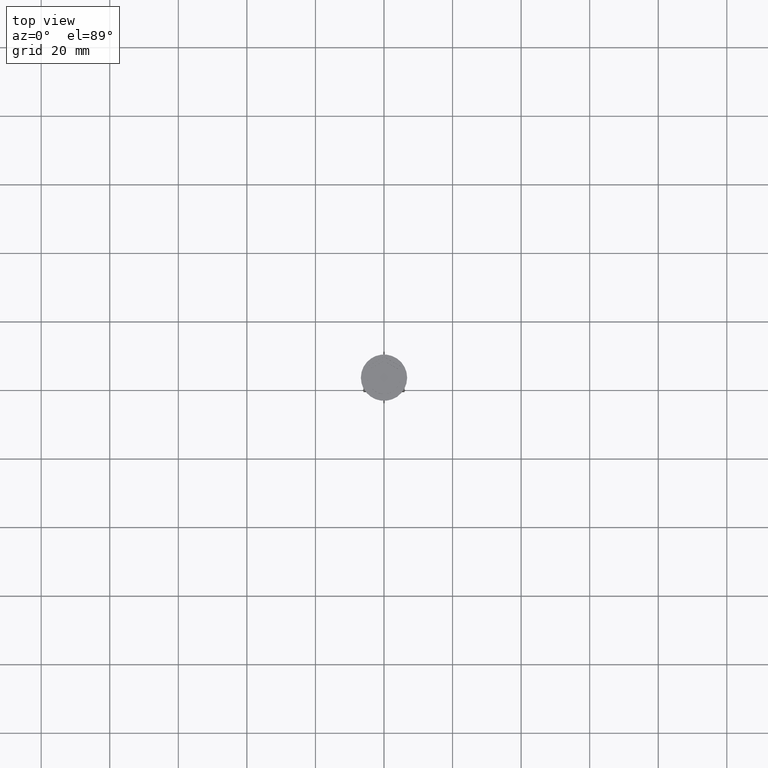
[diagram: clean part render]
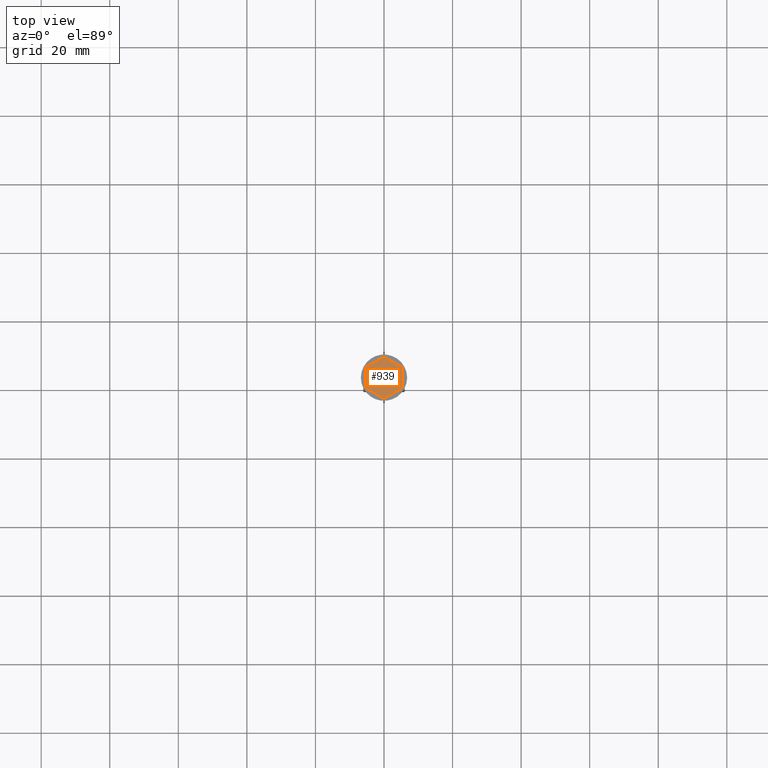
[diagram: same view with one face highlighted and labeled with its STEP entity id]
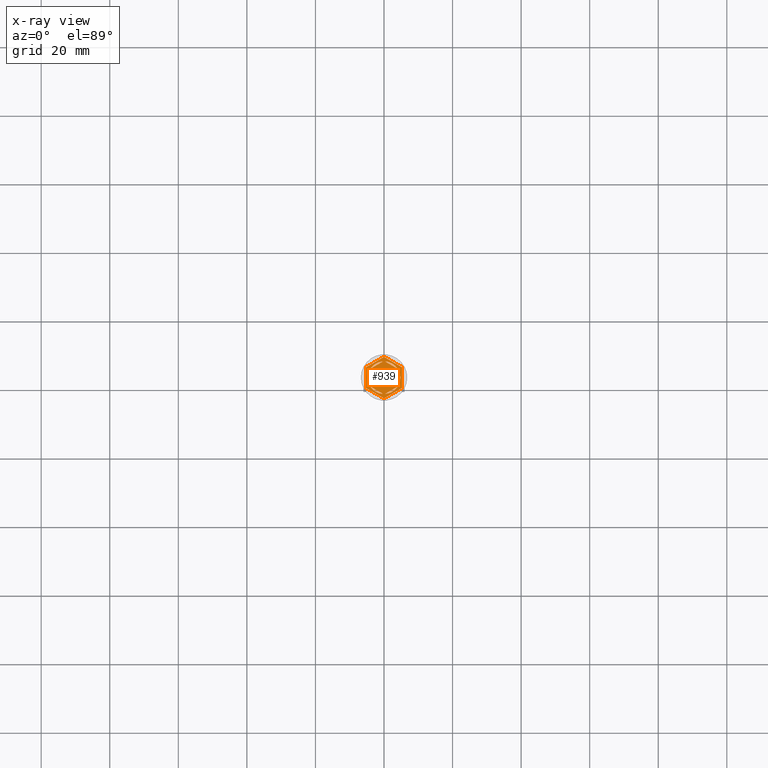
[diagram: x-ray of the same camera — body ghosted, the highlighted face saturated]
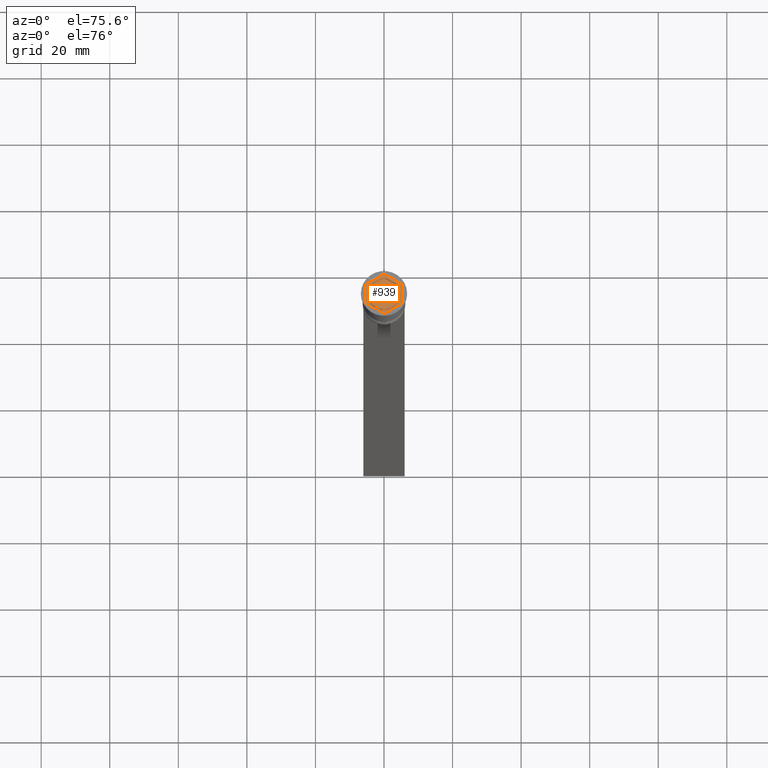
[diagram: same view with one face highlighted and labeled with its STEP entity id]
A machine part, top view. The second image highlights one B-rep face of the part: STEP entity #939.
The next image is the same camera in x-ray: the body ghosted, the highlighted face saturated — about 0% of this face is hidden behind the body in this view.
A second angle (auxiliary view) of the same face is appended — the face is thin or edge-on in the first view.
In plain terms, the highlighted planar face has unit normal (0, 0, 1).
Its self-contained STEP definition (entity closure, byte-faithful):
#8 = DIRECTION ( 'NONE',  ( -0.8660254037844385966, 0.4999999999999998890, 0.000000000000000000 ) ) ;
#11 = EDGE_CURVE ( 'NONE', #247, #1378, #1309, .T. ) ;
#20 = DIRECTION ( 'NONE',  ( -0.8660254037844385966, -0.5000000000000000000, 0.000000000000000000 ) ) ;
#50 = LINE ( 'NONE', #1499, #340 ) ;
#61 = ORIENTED_EDGE ( 'NONE', *, *, #1076, .F. ) ;
#62 = DIRECTION ( 'NONE',  ( 1.000000000000000000, 0.000000000000000000, 0.000000000000000000 ) ) ;
#65 = AXIS2_PLACEMENT_3D ( 'NONE', #1654, #1327, #62 ) ;
#70 = ORIENTED_EDGE ( 'NONE', *, *, #2182, .F. ) ;
#93 = DIRECTION ( 'NONE',  ( 0.8660254037844387076, -0.4999999999999998335, 0.000000000000000000 ) ) ;
#97 = LINE ( 'NONE', #794, #1803 ) ;
#106 = EDGE_LOOP ( 'NONE', ( #893, #70 ) ) ;
#144 = EDGE_CURVE ( 'NONE', #1817, #1516, #2342, .T. ) ;
#146 = CARTESIAN_POINT ( 'NONE',  ( -5.250000000000000888, -3.031088913245536087, -1.000000000000000000 ) ) ;
#150 = AXIS2_PLACEMENT_3D ( 'NONE', #851, #531, #161 ) ;
#153 = DIRECTION ( 'NONE',  ( 1.000000000000000000, 0.000000000000000000, 0.000000000000000000 ) ) ;
#161 = DIRECTION ( 'NONE',  ( 1.000000000000000000, 0.000000000000000000, 0.000000000000000000 ) ) ;
#173 = FACE_BOUND ( 'NONE', #1794, .T. ) ;
#176 = CARTESIAN_POINT ( 'NONE',  ( -4.250000000000000000, 2.121320343559643717, -1.000000000000000888 ) ) ;
#185 = EDGE_CURVE ( 'NONE', #2011, #563, #1121, .T. ) ;
#196 = VERTEX_POINT ( 'NONE', #244 ) ;
#244 = CARTESIAN_POINT ( 'NONE',  ( 5.250000000000000888, 3.031088913245536087, -1.000000000000000000 ) ) ;
#247 = VERTEX_POINT ( 'NONE', #394 ) ;
#257 = CIRCLE ( 'NONE', #747, 4.750000000000000888 ) ;
#302 = CIRCLE ( 'NONE', #65, 4.750000000000000888 ) ;
#321 = CARTESIAN_POINT ( 'NONE',  ( 4.249999999999999112, 2.121320343559644162, -1.000000000000000888 ) ) ;
#326 = VERTEX_POINT ( 'NONE', #1038 ) ;
#337 = CARTESIAN_POINT ( 'NONE',  ( -8.673617379884035472E-16, -4.907477288111819824, -1.000000000000000888 ) ) ;
#340 = VECTOR ( 'NONE', #1138, 1000.000000000000114 ) ;
#347 = FACE_BOUND ( 'NONE', #2136, .T. ) ;
#357 = DIRECTION ( 'NONE',  ( 0.000000000000000000, 0.000000000000000000, 1.000000000000000000 ) ) ;
#358 = ORIENTED_EDGE ( 'NONE', *, *, #1484, .T. ) ;
#363 = FACE_BOUND ( 'NONE', #387, .T. ) ;
#387 = EDGE_LOOP ( 'NONE', ( #1337, #1710 ) ) ;
#391 = CARTESIAN_POINT ( 'NONE',  ( 0.000000000000000000, 0.000000000000000000, -1.000000000000000000 ) ) ;
#394 = CARTESIAN_POINT ( 'NONE',  ( -3.962117307087385409, -2.619947794304041899, -1.000000000000000888 ) ) ;
#406 = AXIS2_PLACEMENT_3D ( 'NONE', #1417, #1065, #1619 ) ;
#429 = DIRECTION ( 'NONE',  ( 0.000000000000000000, 0.000000000000000000, 1.000000000000000000 ) ) ;
#442 = DIRECTION ( 'NONE',  ( 1.000000000000000000, 0.000000000000000000, 0.000000000000000000 ) ) ;
#514 = EDGE_CURVE ( 'NONE', #563, #823, #1199, .T. ) ;
#531 = DIRECTION ( 'NONE',  ( 0.000000000000000000, 0.000000000000000000, 1.000000000000000000 ) ) ;
#538 = EDGE_CURVE ( 'NONE', #1025, #1063, #1601, .T. ) ;
#542 = ORIENTED_EDGE ( 'NONE', *, *, #1625, .T. ) ;
#549 = DIRECTION ( 'NONE',  ( 1.000000000000000000, 0.000000000000000000, 0.000000000000000000 ) ) ;
#550 = VERTEX_POINT ( 'NONE', #1068 ) ;
#551 = ORIENTED_EDGE ( 'NONE', *, *, #1855, .F. ) ;
#563 = VERTEX_POINT ( 'NONE', #176 ) ;
#571 = CARTESIAN_POINT ( 'NONE',  ( -4.250000000000000000, 2.453738644055909468, -1.000000000000000888 ) ) ;
#583 = CARTESIAN_POINT ( 'NONE',  ( 3.962117307087384521, 2.619947794304043232, -1.000000000000000888 ) ) ;
#584 = CARTESIAN_POINT ( 'NONE',  ( 0.2878826929126150347, -4.741268137863686505, -1.000000000000000888 ) ) ;
#589 = AXIS2_PLACEMENT_3D ( 'NONE', #906, #357, #708 ) ;
#593 = AXIS2_PLACEMENT_3D ( 'NONE', #1096, #1627, #549 ) ;
#603 = VECTOR ( 'NONE', #736, 1000.000000000000000 ) ;
#630 = VERTEX_POINT ( 'NONE', #1119 ) ;
#645 = EDGE_LOOP ( 'NONE', ( #2318, #1724, #1367, #358, #1510, #542 ) ) ;
#646 = CARTESIAN_POINT ( 'NONE',  ( 0.000000000000000000, 0.000000000000000000, -1.000000000000000000 ) ) ;
#684 = DIRECTION ( 'NONE',  ( -0.8660254037844385966, 0.5000000000000001110, 0.000000000000000000 ) ) ;
#694 = FACE_OUTER_BOUND ( 'NONE', #645, .T. ) ;
#703 = CARTESIAN_POINT ( 'NONE',  ( -4.250000000000000000, -2.453738644055909912, -1.000000000000000888 ) ) ;
#708 = DIRECTION ( 'NONE',  ( 1.000000000000000000, 0.000000000000000000, 0.000000000000000000 ) ) ;
#736 = DIRECTION ( 'NONE',  ( -1.767428939690775055E-16, -1.000000000000000000, 0.000000000000000000 ) ) ;
#742 = VECTOR ( 'NONE', #1445, 1000.000000000000000 ) ;
#746 = VECTOR ( 'NONE', #93, 1000.000000000000000 ) ;
#747 = AXIS2_PLACEMENT_3D ( 'NONE', #391, #2193, #1511 ) ;
#794 = CARTESIAN_POINT ( 'NONE',  ( 4.250000000000000000, 2.453738644055910800, -1.000000000000000888 ) ) ;
#800 = VERTEX_POINT ( 'NONE', #982 ) ;
#820 = CARTESIAN_POINT ( 'NONE',  ( -4.750000000000000888, 0.000000000000000000, -1.000000000000000000 ) ) ;
#821 = VECTOR ( 'NONE', #2285, 1000.000000000000000 ) ;
#823 = VERTEX_POINT ( 'NONE', #820 ) ;
#851 = CARTESIAN_POINT ( 'NONE',  ( 0.000000000000000000, 0.000000000000000000, -1.000000000000000000 ) ) ;
#862 = LINE ( 'NONE', #2312, #1687 ) ;
#891 = CARTESIAN_POINT ( 'NONE',  ( 5.250000000000000888, 3.031088913245536087, -1.000000000000000000 ) ) ;
#893 = ORIENTED_EDGE ( 'NONE', *, *, #11, .F. ) ;
#905 = LINE ( 'NONE', #891, #1123 ) ;
#906 = CARTESIAN_POINT ( 'NONE',  ( 0.000000000000000000, 0.000000000000000000, -1.000000000000000000 ) ) ;
#914 = DIRECTION ( 'NONE',  ( 0.8660254037844385966, 0.5000000000000001110, -0.000000000000000000 ) ) ;
#919 = CARTESIAN_POINT ( 'NONE',  ( 4.249999999999999112, -2.453738644055910356, -1.000000000000000888 ) ) ;
#939 = ADVANCED_FACE ( 'NONE', ( #1783, #363, #173, #1406, #1962, #347, #694 ), #1936, .T. ) ;
#975 = ORIENTED_EDGE ( 'NONE', *, *, #185, .F. ) ;
#982 = CARTESIAN_POINT ( 'NONE',  ( 4.249999999999999112, -2.121320343559645938, -1.000000000000000888 ) ) ;
#1013 = VECTOR ( 'NONE', #684, 1000.000000000000000 ) ;
#1025 = VERTEX_POINT ( 'NONE', #1137 ) ;
#1028 = ORIENTED_EDGE ( 'NONE', *, *, #1226, .F. ) ;
#1038 = CARTESIAN_POINT ( 'NONE',  ( 0.2878826929126145906, 4.741268137863685617, -1.000000000000000888 ) ) ;
#1054 = VERTEX_POINT ( 'NONE', #1679 ) ;
#1063 = VERTEX_POINT ( 'NONE', #584 ) ;
#1065 = DIRECTION ( 'NONE',  ( 0.000000000000000000, 0.000000000000000000, 1.000000000000000000 ) ) ;
#1068 = CARTESIAN_POINT ( 'NONE',  ( 0.000000000000000000, 6.062177826491072175, -1.000000000000000000 ) ) ;
#1076 = EDGE_CURVE ( 'NONE', #326, #2274, #97, .T. ) ;
#1077 = CARTESIAN_POINT ( 'NONE',  ( 8.729740977282959667E-16, -6.062177826491071286, -1.000000000000000000 ) ) ;
#1080 = AXIS2_PLACEMENT_3D ( 'NONE', #646, #429, #442 ) ;
#1092 = AXIS2_PLACEMENT_3D ( 'NONE', #2331, #2298, #153 ) ;
#1096 = CARTESIAN_POINT ( 'NONE',  ( 0.000000000000000000, 0.000000000000000000, -1.000000000000000000 ) ) ;
#1098 = LINE ( 'NONE', #919, #603 ) ;
#1119 = CARTESIAN_POINT ( 'NONE',  ( 5.250000000000000888, -3.031088913245536087, -1.000000000000000000 ) ) ;
#1121 = LINE ( 'NONE', #571, #1197 ) ;
#1123 = VECTOR ( 'NONE', #8, 1000.000000000000227 ) ;
#1137 = CARTESIAN_POINT ( 'NONE',  ( 3.962117307087384521, -2.619947794304042787, -1.000000000000000888 ) ) ;
#1138 = DIRECTION ( 'NONE',  ( 0.8660254037844385966, 0.4999999999999999445, 0.000000000000000000 ) ) ;
#1157 = CIRCLE ( 'NONE', #150, 4.750000000000000888 ) ;
#1175 = ORIENTED_EDGE ( 'NONE', *, *, #514, .F. ) ;
#1197 = VECTOR ( 'NONE', #2016, 1000.000000000000000 ) ;
#1199 = CIRCLE ( 'NONE', #589, 4.750000000000000888 ) ;
#1226 = EDGE_CURVE ( 'NONE', #2274, #326, #1249, .T. ) ;
#1249 = CIRCLE ( 'NONE', #1092, 4.750000000000000888 ) ;
#1255 = ORIENTED_EDGE ( 'NONE', *, *, #144, .F. ) ;
#1309 = CIRCLE ( 'NONE', #1080, 4.750000000000000888 ) ;
#1324 = ORIENTED_EDGE ( 'NONE', *, *, #538, .F. ) ;
#1327 = DIRECTION ( 'NONE',  ( 0.000000000000000000, 0.000000000000000000, 1.000000000000000000 ) ) ;
#1337 = ORIENTED_EDGE ( 'NONE', *, *, #1862, .F. ) ;
#1357 = LINE ( 'NONE', #1871, #821 ) ;
#1367 = ORIENTED_EDGE ( 'NONE', *, *, #2018, .T. ) ;
#1377 = EDGE_CURVE ( 'NONE', #823, #2011, #1157, .T. ) ;
#1378 = VERTEX_POINT ( 'NONE', #1944 ) ;
#1406 = FACE_BOUND ( 'NONE', #106, .T. ) ;
#1417 = CARTESIAN_POINT ( 'NONE',  ( 0.000000000000000000, 0.000000000000000000, -1.000000000000000000 ) ) ;
#1436 = EDGE_CURVE ( 'NONE', #1063, #1025, #1538, .T. ) ;
#1445 = DIRECTION ( 'NONE',  ( -0.8660254037844387076, -0.4999999999999999445, 0.000000000000000000 ) ) ;
#1484 = EDGE_CURVE ( 'NONE', #2276, #1751, #2090, .T. ) ;
#1499 = CARTESIAN_POINT ( 'NONE',  ( 8.729740977282959667E-16, -6.062177826491071286, -1.000000000000000000 ) ) ;
#1510 = ORIENTED_EDGE ( 'NONE', *, *, #1904, .T. ) ;
#1511 = DIRECTION ( 'NONE',  ( 1.000000000000000000, 0.000000000000000000, 0.000000000000000000 ) ) ;
#1516 = VERTEX_POINT ( 'NONE', #1899 ) ;
#1521 = ORIENTED_EDGE ( 'NONE', *, *, #1436, .F. ) ;
#1538 = CIRCLE ( 'NONE', #593, 4.750000000000000888 ) ;
#1601 = LINE ( 'NONE', #337, #742 ) ;
#1603 = EDGE_LOOP ( 'NONE', ( #1028, #61 ) ) ;
#1604 = LINE ( 'NONE', #703, #1013 ) ;
#1607 = EDGE_CURVE ( 'NONE', #196, #550, #905, .T. ) ;
#1619 = DIRECTION ( 'NONE',  ( 1.000000000000000000, 0.000000000000000000, -0.000000000000000000 ) ) ;
#1623 = VECTOR ( 'NONE', #20, 1000.000000000000227 ) ;
#1625 = EDGE_CURVE ( 'NONE', #630, #196, #862, .T. ) ;
#1627 = DIRECTION ( 'NONE',  ( 0.000000000000000000, 0.000000000000000000, 1.000000000000000000 ) ) ;
#1632 = DIRECTION ( 'NONE',  ( 0.000000000000000000, 1.000000000000000000, 0.000000000000000000 ) ) ;
#1654 = CARTESIAN_POINT ( 'NONE',  ( 0.000000000000000000, 0.000000000000000000, -1.000000000000000000 ) ) ;
#1679 = CARTESIAN_POINT ( 'NONE',  ( -5.250000000000000888, 3.031088913245535643, -1.000000000000000000 ) ) ;
#1687 = VECTOR ( 'NONE', #1632, 1000.000000000000000 ) ;
#1701 = ORIENTED_EDGE ( 'NONE', *, *, #1377, .F. ) ;
#1710 = ORIENTED_EDGE ( 'NONE', *, *, #2232, .F. ) ;
#1724 = ORIENTED_EDGE ( 'NONE', *, *, #1851, .T. ) ;
#1733 = DIRECTION ( 'NONE',  ( 0.8660254037844387076, -0.4999999999999998335, 0.000000000000000000 ) ) ;
#1751 = VERTEX_POINT ( 'NONE', #1077 ) ;
#1783 = FACE_BOUND ( 'NONE', #1603, .T. ) ;
#1794 = EDGE_LOOP ( 'NONE', ( #1521, #1324 ) ) ;
#1803 = VECTOR ( 'NONE', #1733, 1000.000000000000000 ) ;
#1817 = VERTEX_POINT ( 'NONE', #2048 ) ;
#1835 = CARTESIAN_POINT ( 'NONE',  ( -5.250000000000000888, -3.031088913245536087, -1.000000000000000000 ) ) ;
#1851 = EDGE_CURVE ( 'NONE', #550, #1054, #2183, .T. ) ;
#1855 = EDGE_CURVE ( 'NONE', #1516, #1817, #257, .T. ) ;
#1862 = EDGE_CURVE ( 'NONE', #800, #2096, #302, .T. ) ;
#1871 = CARTESIAN_POINT ( 'NONE',  ( -5.250000000000000888, 3.031088913245535643, -1.000000000000000000 ) ) ;
#1899 = CARTESIAN_POINT ( 'NONE',  ( -0.2878826929126160894, 4.741268137863686505, -1.000000000000000888 ) ) ;
#1904 = EDGE_CURVE ( 'NONE', #1751, #630, #50, .T. ) ;
#1906 = CARTESIAN_POINT ( 'NONE',  ( -4.250000000000000000, -2.121320343559643717, -1.000000000000000888 ) ) ;
#1919 = CARTESIAN_POINT ( 'NONE',  ( 4.336808689942017736E-16, 4.907477288111819824, -1.000000000000000888 ) ) ;
#1936 = PLANE ( 'NONE',  #406 ) ;
#1944 = CARTESIAN_POINT ( 'NONE',  ( -0.2878826929126160894, -4.741268137863686505, -1.000000000000000888 ) ) ;
#1962 = FACE_BOUND ( 'NONE', #2322, .T. ) ;
#2006 = CARTESIAN_POINT ( 'NONE',  ( 0.000000000000000000, 6.062177826491072175, -1.000000000000000000 ) ) ;
#2011 = VERTEX_POINT ( 'NONE', #1906 ) ;
#2016 = DIRECTION ( 'NONE',  ( 0.000000000000000000, 1.000000000000000000, 0.000000000000000000 ) ) ;
#2018 = EDGE_CURVE ( 'NONE', #1054, #2276, #1357, .T. ) ;
#2048 = CARTESIAN_POINT ( 'NONE',  ( -3.962117307087385409, 2.619947794304041899, -1.000000000000000888 ) ) ;
#2090 = LINE ( 'NONE', #146, #746 ) ;
#2096 = VERTEX_POINT ( 'NONE', #321 ) ;
#2136 = EDGE_LOOP ( 'NONE', ( #551, #1255 ) ) ;
#2182 = EDGE_CURVE ( 'NONE', #1378, #247, #1604, .T. ) ;
#2183 = LINE ( 'NONE', #2006, #1623 ) ;
#2193 = DIRECTION ( 'NONE',  ( 0.000000000000000000, 0.000000000000000000, 1.000000000000000000 ) ) ;
#2232 = EDGE_CURVE ( 'NONE', #2096, #800, #1098, .T. ) ;
#2274 = VERTEX_POINT ( 'NONE', #583 ) ;
#2276 = VERTEX_POINT ( 'NONE', #1835 ) ;
#2285 = DIRECTION ( 'NONE',  ( 0.000000000000000000, -1.000000000000000000, 0.000000000000000000 ) ) ;
#2287 = VECTOR ( 'NONE', #914, 1000.000000000000000 ) ;
#2298 = DIRECTION ( 'NONE',  ( 0.000000000000000000, 0.000000000000000000, 1.000000000000000000 ) ) ;
#2312 = CARTESIAN_POINT ( 'NONE',  ( 5.250000000000000888, -3.031088913245536087, -1.000000000000000000 ) ) ;
#2318 = ORIENTED_EDGE ( 'NONE', *, *, #1607, .T. ) ;
#2322 = EDGE_LOOP ( 'NONE', ( #1175, #975, #1701 ) ) ;
#2331 = CARTESIAN_POINT ( 'NONE',  ( 0.000000000000000000, 0.000000000000000000, -1.000000000000000000 ) ) ;
#2342 = LINE ( 'NONE', #1919, #2287 ) ;